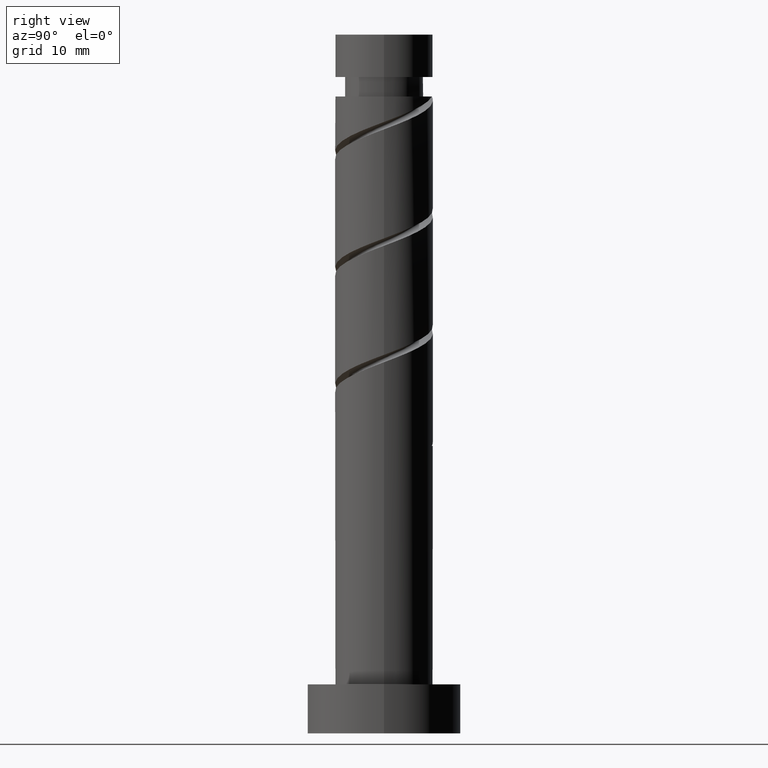
[diagram: clean part render]
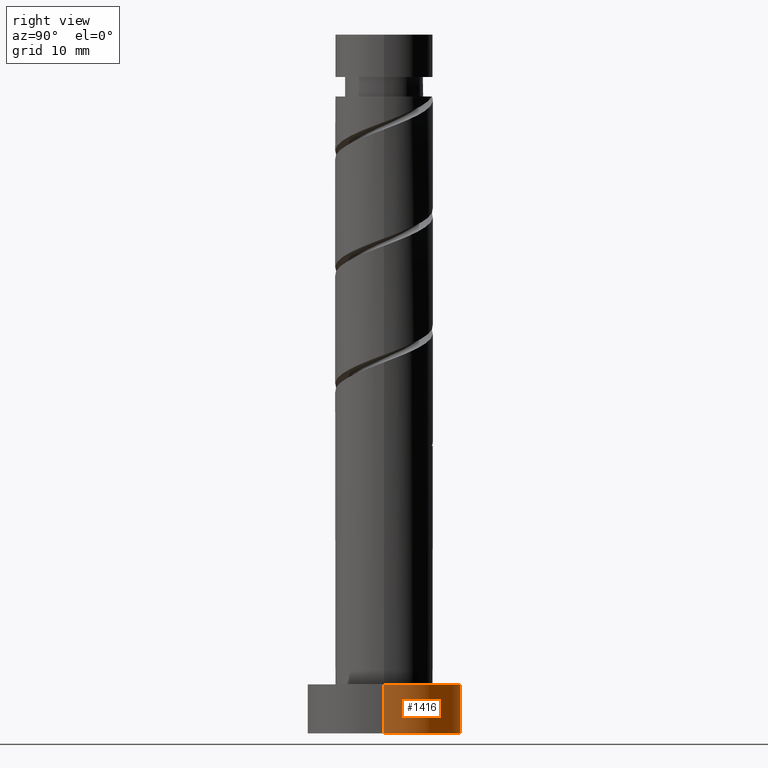
[diagram: same view with one face highlighted and labeled with its STEP entity id]
A machine part, right view. The second image highlights one B-rep face of the part: STEP entity #1416.
In plain terms, the highlighted cylindrical surface (partial cylindrical patch) has radius 11 mm, axis along (-0, -0, -1).
Its self-contained STEP definition (entity closure, byte-faithful):
#1 = ORIENTED_EDGE ( 'NONE', *, *, #421, .T. ) ;
#50 = EDGE_CURVE ( 'NONE', #386, #1272, #238, .T. ) ;
#86 = VECTOR ( 'NONE', #1030, 1000.000000000000000 ) ;
#154 = ORIENTED_EDGE ( 'NONE', *, *, #50, .F. ) ;
#193 = DIRECTION ( 'NONE',  ( 0.000000000000000000, 0.000000000000000000, 1.000000000000000000 ) ) ;
#226 = DIRECTION ( 'NONE',  ( -1.000000000000000000, 0.000000000000000000, 0.000000000000000000 ) ) ;
#238 = CIRCLE ( 'NONE', #802, 11.00000000000000000 ) ;
#245 = VERTEX_POINT ( 'NONE', #623 ) ;
#297 = ORIENTED_EDGE ( 'NONE', *, *, #1332, .T. ) ;
#334 = EDGE_CURVE ( 'NONE', #1272, #245, #1144, .T. ) ;
#337 = DIRECTION ( 'NONE',  ( -0.000000000000000000, -0.000000000000000000, -1.000000000000000000 ) ) ;
#386 = VERTEX_POINT ( 'NONE', #472 ) ;
#417 = DIRECTION ( 'NONE',  ( 1.000000000000000000, 0.000000000000000000, 0.000000000000000000 ) ) ;
#421 = EDGE_CURVE ( 'NONE', #521, #245, #865, .T. ) ;
#427 = DIRECTION ( 'NONE',  ( -0.000000000000000000, -0.000000000000000000, -1.000000000000000000 ) ) ;
#448 = CYLINDRICAL_SURFACE ( 'NONE', #1094, 11.00000000000000000 ) ;
#472 = CARTESIAN_POINT ( 'NONE',  ( 11.00000000000000000, 1.347111479062088405E-15, 7.000000000000000000 ) ) ;
#521 = VERTEX_POINT ( 'NONE', #963 ) ;
#545 = CARTESIAN_POINT ( 'NONE',  ( 0.000000000000000000, 0.000000000000000000, 7.000000000000000000 ) ) ;
#569 = CARTESIAN_POINT ( 'NONE',  ( -11.00000000000000000, 0.000000000000000000, 7.000000000000000000 ) ) ;
#623 = CARTESIAN_POINT ( 'NONE',  ( -11.00000000000000000, 0.000000000000000000, 0.000000000000000000 ) ) ;
#660 = VECTOR ( 'NONE', #427, 1000.000000000000000 ) ;
#802 = AXIS2_PLACEMENT_3D ( 'NONE', #545, #193, #417 ) ;
#854 = DIRECTION ( 'NONE',  ( 1.000000000000000000, 0.000000000000000000, 0.000000000000000000 ) ) ;
#865 = CIRCLE ( 'NONE', #1075, 11.00000000000000000 ) ;
#913 = CARTESIAN_POINT ( 'NONE',  ( 0.000000000000000000, 0.000000000000000000, 0.000000000000000000 ) ) ;
#963 = CARTESIAN_POINT ( 'NONE',  ( 11.00000000000000000, 1.347111479062088405E-15, 0.000000000000000000 ) ) ;
#1030 = DIRECTION ( 'NONE',  ( -0.000000000000000000, -0.000000000000000000, -1.000000000000000000 ) ) ;
#1033 = FACE_OUTER_BOUND ( 'NONE', #1486, .T. ) ;
#1075 = AXIS2_PLACEMENT_3D ( 'NONE', #913, #1163, #854 ) ;
#1094 = AXIS2_PLACEMENT_3D ( 'NONE', #1365, #337, #226 ) ;
#1114 = CARTESIAN_POINT ( 'NONE',  ( -11.00000000000000000, 0.000000000000000000, 7.000000000000000000 ) ) ;
#1141 = LINE ( 'NONE', #1450, #660 ) ;
#1144 = LINE ( 'NONE', #569, #86 ) ;
#1163 = DIRECTION ( 'NONE',  ( 0.000000000000000000, 0.000000000000000000, 1.000000000000000000 ) ) ;
#1164 = ORIENTED_EDGE ( 'NONE', *, *, #334, .F. ) ;
#1272 = VERTEX_POINT ( 'NONE', #1114 ) ;
#1332 = EDGE_CURVE ( 'NONE', #386, #521, #1141, .T. ) ;
#1365 = CARTESIAN_POINT ( 'NONE',  ( 0.000000000000000000, 0.000000000000000000, 7.000000000000000000 ) ) ;
#1416 = ADVANCED_FACE ( 'NONE', ( #1033 ), #448, .T. ) ;
#1450 = CARTESIAN_POINT ( 'NONE',  ( 11.00000000000000000, 1.347111479062088405E-15, 7.000000000000000000 ) ) ;
#1486 = EDGE_LOOP ( 'NONE', ( #154, #297, #1, #1164 ) ) ;